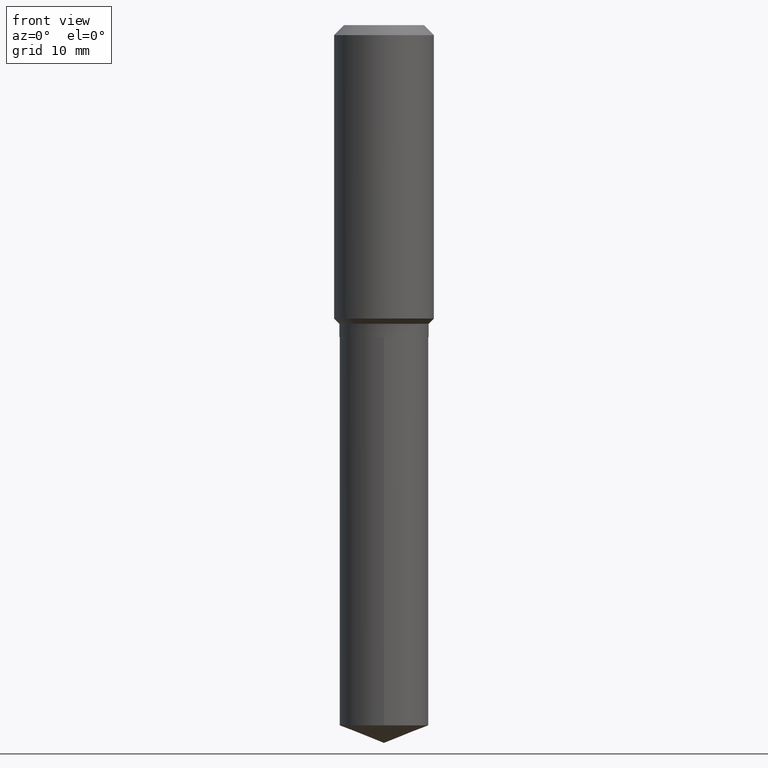
[diagram: clean part render]
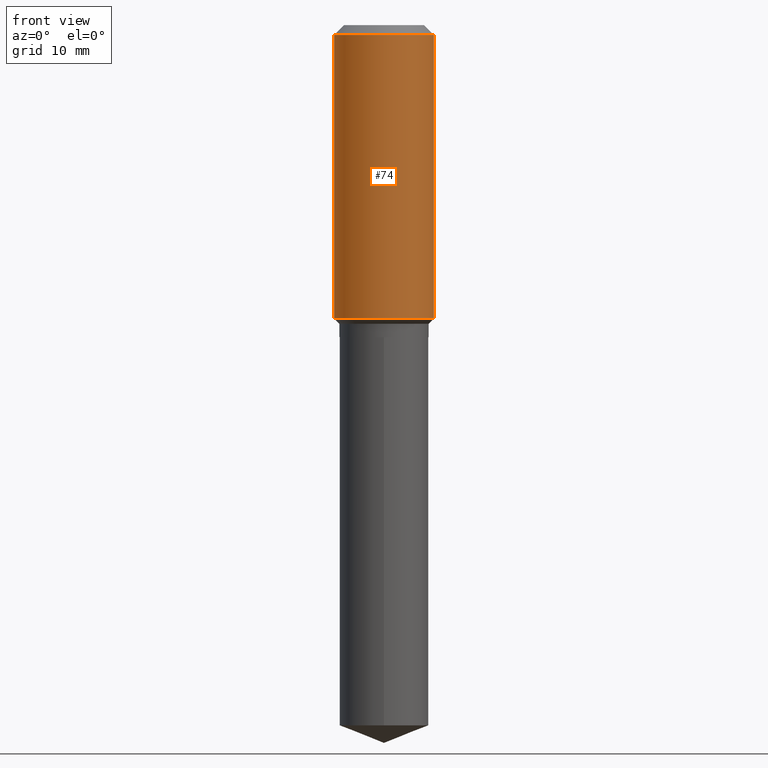
[diagram: same view with one face highlighted and labeled with its STEP entity id]
A machine part, front view. The second image highlights one B-rep face of the part: STEP entity #74.
In plain terms, the highlighted cylindrical surface (partial cylindrical patch) has radius 7.9997 mm, axis along (-0, 0, 1).
Its self-contained STEP definition (entity closure, byte-faithful):
#4 = DIRECTION ( 'NONE',  ( -2.445468806185136877E-29, 3.491481338843145188E-15, 1.000000000000000000 ) ) ;
#17 = EDGE_CURVE ( 'NONE', #388, #33, #192, .T. ) ;
#33 = VERTEX_POINT ( 'NONE', #214 ) ;
#42 = AXIS2_PLACEMENT_3D ( 'NONE', #474, #139, #435 ) ;
#52 = CARTESIAN_POINT ( 'NONE',  ( 1.540400801016026505E-30, -2.199284095337310628E-16, -0.06299000000000037902 ) ) ;
#57 = EDGE_CURVE ( 'NONE', #388, #423, #195, .T. ) ;
#62 = CARTESIAN_POINT ( 'NONE',  ( 0.3149500000000001743, -2.199284095337290660E-15, 1.535751875536930690E-29 ) ) ;
#67 = VECTOR ( 'NONE', #375, 39.37007874015748143 ) ;
#74 = ADVANCED_FACE ( 'NONE', ( #292 ), #358, .T. ) ;
#76 = VERTEX_POINT ( 'NONE', #103 ) ;
#97 = DIRECTION ( 'NONE',  ( 1.000000000000000000, -6.982962677686266711E-15, 0.000000000000000000 ) ) ;
#98 = EDGE_CURVE ( 'NONE', #33, #76, #306, .T. ) ;
#103 = CARTESIAN_POINT ( 'NONE',  ( 0.3149500000000000077, -2.419212504871020909E-15, -0.06299000000000037902 ) ) ;
#106 = EDGE_LOOP ( 'NONE', ( #301, #219, #368, #376 ) ) ;
#139 = DIRECTION ( 'NONE',  ( -2.445468806185136597E-29, 3.491481338843145583E-15, 1.000000000000000000 ) ) ;
#166 = CARTESIAN_POINT ( 'NONE',  ( -0.3149500000000001743, 2.237854346276436774E-15, -1.549218606675783237E-29 ) ) ;
#171 = DIRECTION ( 'NONE',  ( 1.000000000000000000, -6.982962677686265922E-15, 4.876176775795935232E-29 ) ) ;
#189 = LINE ( 'NONE', #62, #67 ) ;
#192 = LINE ( 'NONE', #166, #270 ) ;
#195 = CIRCLE ( 'NONE', #42, 0.3149500000000002298 ) ;
#214 = CARTESIAN_POINT ( 'NONE',  ( -0.3149500000000000077, -1.102428393188106153E-15, -0.06299000000000037902 ) ) ;
#217 = AXIS2_PLACEMENT_3D ( 'NONE', #52, #323, #97 ) ;
#219 = ORIENTED_EDGE ( 'NONE', *, *, #57, .T. ) ;
#250 = CARTESIAN_POINT ( 'NONE',  ( 0.000000000000000000, 0.000000000000000000, 0.000000000000000000 ) ) ;
#269 = EDGE_CURVE ( 'NONE', #423, #76, #189, .T. ) ;
#270 = VECTOR ( 'NONE', #4, 39.37007874015748143 ) ;
#292 = FACE_OUTER_BOUND ( 'NONE', #106, .T. ) ;
#301 = ORIENTED_EDGE ( 'NONE', *, *, #17, .F. ) ;
#306 = CIRCLE ( 'NONE', #217, 0.3149500000000000077 ) ;
#323 = DIRECTION ( 'NONE',  ( -2.445468806185136597E-29, 3.491481338843145583E-15, 1.000000000000000000 ) ) ;
#358 = CYLINDRICAL_SURFACE ( 'NONE', #400, 0.3149500000000001743 ) ;
#368 = ORIENTED_EDGE ( 'NONE', *, *, #269, .T. ) ;
#375 = DIRECTION ( 'NONE',  ( -2.445468806185136877E-29, 3.491481338843145188E-15, 1.000000000000000000 ) ) ;
#376 = ORIENTED_EDGE ( 'NONE', *, *, #98, .F. ) ;
#387 = CARTESIAN_POINT ( 'NONE',  ( 0.3149500000000002298, -8.659921164732645869E-15, -1.850399999999999379 ) ) ;
#388 = VERTEX_POINT ( 'NONE', #424 ) ;
#400 = AXIS2_PLACEMENT_3D ( 'NONE', #250, #473, #171 ) ;
#423 = VERTEX_POINT ( 'NONE', #387 ) ;
#424 = CARTESIAN_POINT ( 'NONE',  ( -0.3149500000000002298, -4.222782723118916858E-15, -1.850399999999999379 ) ) ;
#435 = DIRECTION ( 'NONE',  ( 1.000000000000000000, -6.982962677686264344E-15, 0.000000000000000000 ) ) ;
#473 = DIRECTION ( 'NONE',  ( -2.445468806185136597E-29, 3.491481338843145583E-15, 1.000000000000000000 ) ) ;
#474 = CARTESIAN_POINT ( 'NONE',  ( 4.525095478964975152E-29, -6.460637069395354421E-15, -1.850399999999999379 ) ) ;